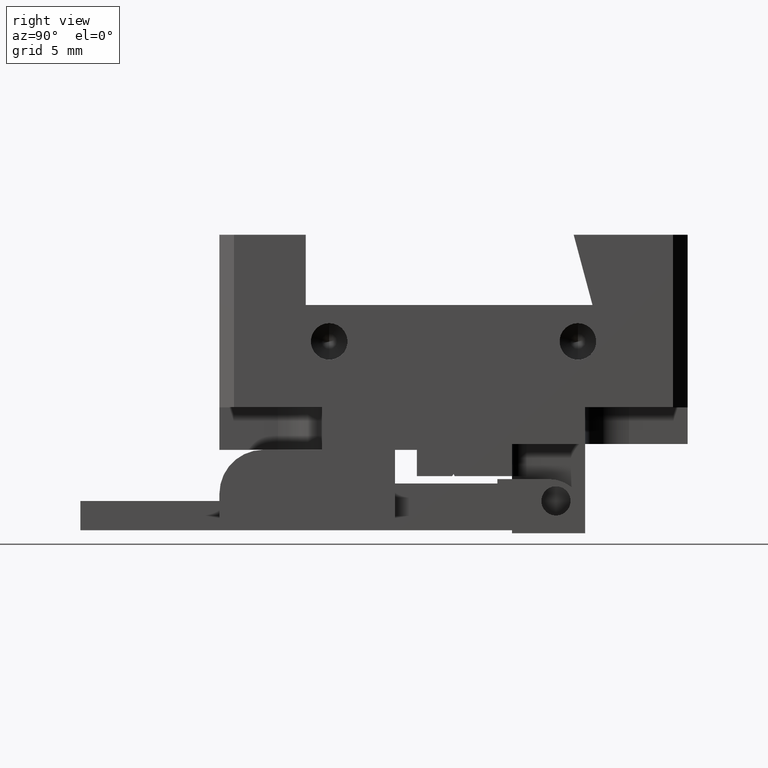
[diagram: clean part render]
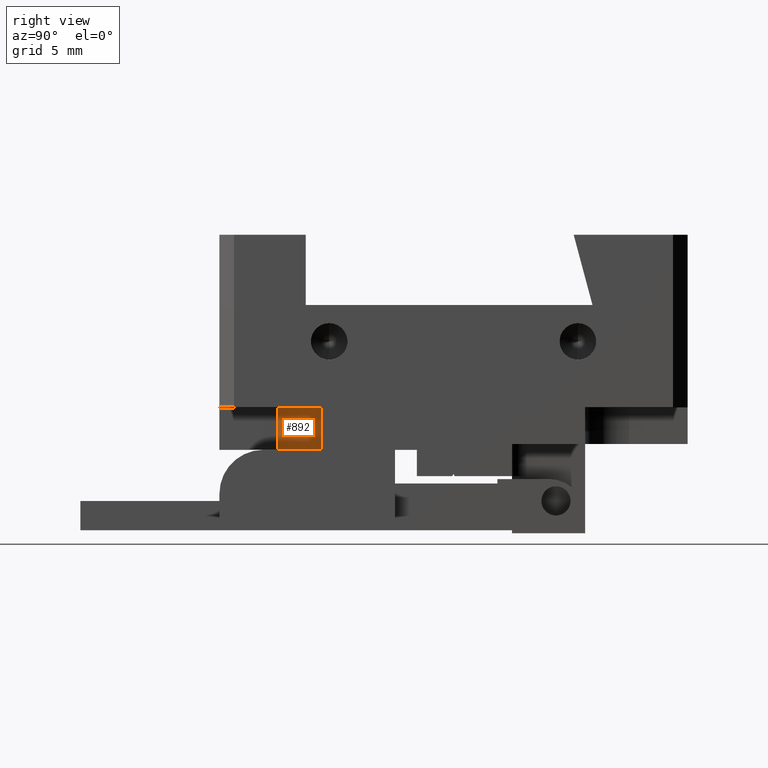
[diagram: same view with one face highlighted and labeled with its STEP entity id]
A machine part, right view. The second image highlights one B-rep face of the part: STEP entity #892.
In plain terms, the highlighted cylindrical surface (partial cylindrical patch) has radius 3 mm, axis along (-0, 0, 1).
Its self-contained STEP definition (entity closure, byte-faithful):
#327 = DIRECTION ( 'NONE',  ( -0.0000000000000000000, -0.0000000000000000000, 1.000000000000000000 ) ) ;
#536 = FACE_OUTER_BOUND ( 'NONE', #2377, .T. ) ;
#605 = CARTESIAN_POINT ( 'NONE',  ( 1.593946590009613900, -9.546973295004562500, 25.60000000000000500 ) ) ;
#636 = CARTESIAN_POINT ( 'NONE',  ( -1.406053409990397900, -9.546973295004589100, 25.60000000000000500 ) ) ;
#657 = CIRCLE ( 'NONE', #3445, 3.000000000000000000 ) ;
#709 = AXIS2_PLACEMENT_3D ( 'NONE', #1773, #1425, #2110 ) ;
#738 = LINE ( 'NONE', #636, #3469 ) ;
#892 = ADVANCED_FACE ( 'NONE', ( #536 ), #1097, .F. ) ;
#938 = DIRECTION ( 'NONE',  ( -1.000000000000000000, 1.156482317317871300E-015, 0.0000000000000000000 ) ) ;
#946 = CARTESIAN_POINT ( 'NONE',  ( 1.593946590009613900, -9.546973295004562500, 22.70000000000000600 ) ) ;
#990 = EDGE_CURVE ( 'NONE', #2859, #1654, #1574, .T. ) ;
#1097 = CYLINDRICAL_SURFACE ( 'NONE', #709, 3.000000000000000000 ) ;
#1286 = DIRECTION ( 'NONE',  ( -1.000000000000000000, 2.949029909160572100E-014, 0.0000000000000000000 ) ) ;
#1425 = DIRECTION ( 'NONE',  ( -0.0000000000000000000, 0.0000000000000000000, 1.000000000000000000 ) ) ;
#1455 = DIRECTION ( 'NONE',  ( 0.0000000000000000000, 0.0000000000000000000, -1.000000000000000000 ) ) ;
#1574 = CIRCLE ( 'NONE', #2072, 3.000000000000000000 ) ;
#1652 = ORIENTED_EDGE ( 'NONE', *, *, #3430, .F. ) ;
#1654 = VERTEX_POINT ( 'NONE', #2252 ) ;
#1773 = CARTESIAN_POINT ( 'NONE',  ( 1.593946590009613900, -9.546973295004562500, 34.81954445729289200 ) ) ;
#2072 = AXIS2_PLACEMENT_3D ( 'NONE', #946, #3265, #1286 ) ;
#2110 = DIRECTION ( 'NONE',  ( 1.000000000000000000, -1.156482317317871300E-015, 0.0000000000000000000 ) ) ;
#2252 = CARTESIAN_POINT ( 'NONE',  ( -1.406053409990397900, -9.546973295004589100, 22.70000000000000600 ) ) ;
#2291 = LINE ( 'NONE', #3793, #3056 ) ;
#2377 = EDGE_LOOP ( 'NONE', ( #3223, #1652, #3531, #2399 ) ) ;
#2399 = ORIENTED_EDGE ( 'NONE', *, *, #3967, .F. ) ;
#2859 = VERTEX_POINT ( 'NONE', #4158 ) ;
#2936 = DIRECTION ( 'NONE',  ( 0.0000000000000000000, 0.0000000000000000000, -1.000000000000000000 ) ) ;
#3027 = VERTEX_POINT ( 'NONE', #4021 ) ;
#3056 = VECTOR ( 'NONE', #1455, 1000.000000000000000 ) ;
#3223 = ORIENTED_EDGE ( 'NONE', *, *, #3729, .F. ) ;
#3265 = DIRECTION ( 'NONE',  ( -0.0000000000000000000, -0.0000000000000000000, 1.000000000000000000 ) ) ;
#3430 = EDGE_CURVE ( 'NONE', #1654, #3027, #738, .T. ) ;
#3445 = AXIS2_PLACEMENT_3D ( 'NONE', #605, #2936, #938 ) ;
#3469 = VECTOR ( 'NONE', #327, 1000.000000000000000 ) ;
#3506 = VERTEX_POINT ( 'NONE', #3665 ) ;
#3531 = ORIENTED_EDGE ( 'NONE', *, *, #990, .F. ) ;
#3665 = CARTESIAN_POINT ( 'NONE',  ( 1.593946590009587700, -6.546973295004565200, 25.60000000000000500 ) ) ;
#3729 = EDGE_CURVE ( 'NONE', #3027, #3506, #657, .T. ) ;
#3793 = CARTESIAN_POINT ( 'NONE',  ( 1.593946590009587700, -6.546973295004565200, 22.70000000000000600 ) ) ;
#3967 = EDGE_CURVE ( 'NONE', #3506, #2859, #2291, .T. ) ;
#4021 = CARTESIAN_POINT ( 'NONE',  ( -1.406053409990397900, -9.546973295004589100, 25.60000000000000500 ) ) ;
#4158 = CARTESIAN_POINT ( 'NONE',  ( 1.593946590009587700, -6.546973295004565200, 22.70000000000000600 ) ) ;